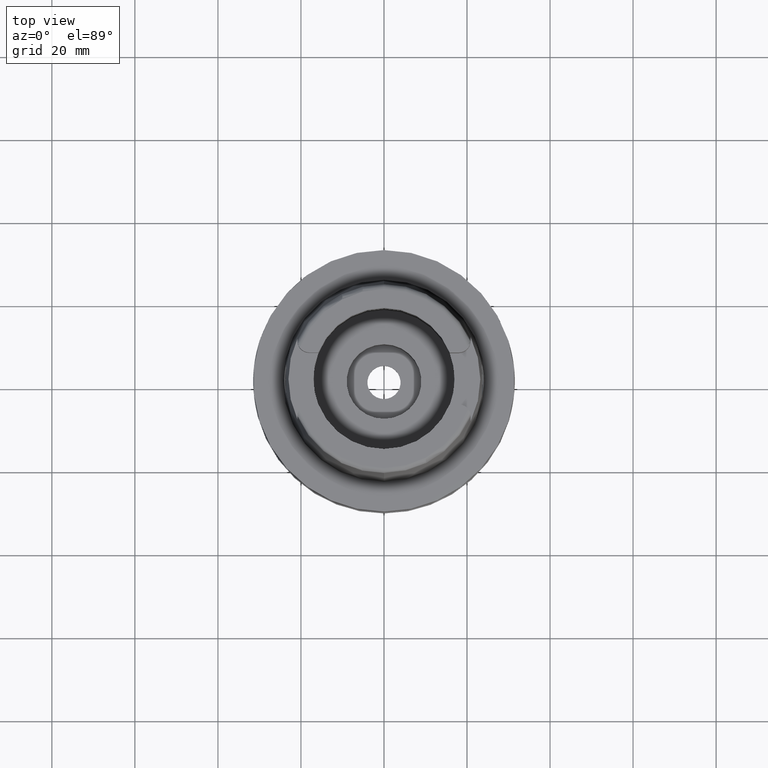
[diagram: clean part render]
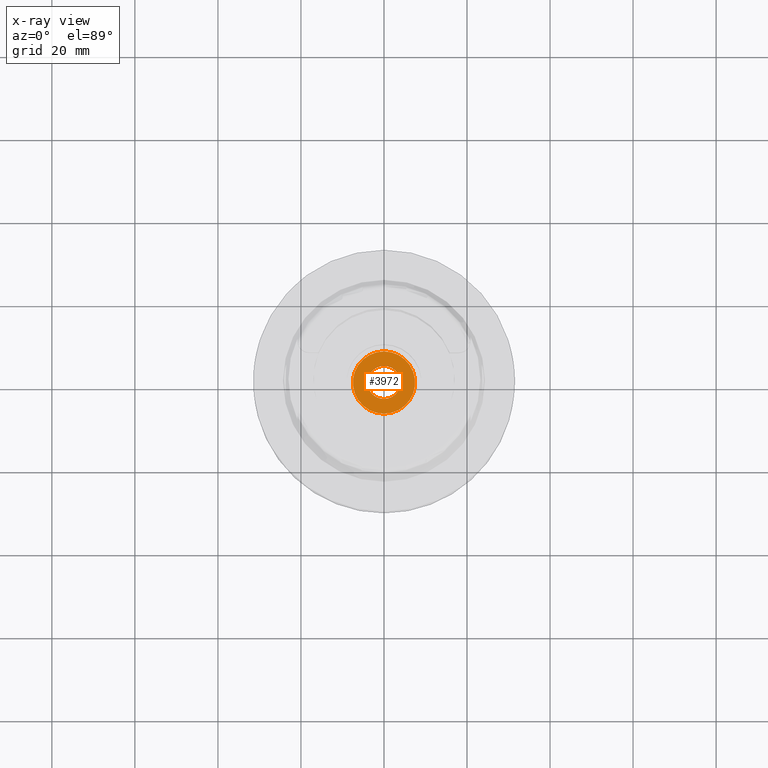
[diagram: x-ray — body ghosted, one internal face saturated and labeled with its STEP entity id]
A machine part, top view, then the same camera in x-ray: the body is ghosted and one INTERNAL B-rep face — a face not visible from any outside direction — is saturated and labeled: STEP entity #3972.
In plain terms, the highlighted planar face has unit normal (0, 0, 1).
Its self-contained STEP definition (entity closure, byte-faithful):
#1885=CARTESIAN_POINT('',(0.E0,0.E0,-2.5E1));
#1886=DIRECTION('',(0.E0,0.E0,1.E0));
#1887=DIRECTION('',(0.E0,-1.E0,0.E0));
#1888=AXIS2_PLACEMENT_3D('',#1885,#1886,#1887);
#1893=CARTESIAN_POINT('',(0.E0,0.E0,-2.5E1));
#1894=DIRECTION('',(0.E0,0.E0,1.E0));
#1895=DIRECTION('',(0.E0,1.E0,0.E0));
#1896=AXIS2_PLACEMENT_3D('',#1893,#1894,#1895);
#1901=CARTESIAN_POINT('',(0.E0,0.E0,-2.5E1));
#1902=DIRECTION('',(0.E0,0.E0,-1.E0));
#1903=DIRECTION('',(0.E0,-1.E0,0.E0));
#1904=AXIS2_PLACEMENT_3D('',#1901,#1902,#1903);
#1909=CARTESIAN_POINT('',(0.E0,0.E0,-2.5E1));
#1910=DIRECTION('',(0.E0,0.E0,-1.E0));
#1911=DIRECTION('',(0.E0,1.E0,0.E0));
#1912=AXIS2_PLACEMENT_3D('',#1909,#1910,#1911);
#2436=CARTESIAN_POINT('',(0.E0,4.E0,-2.5E1));
#2437=VERTEX_POINT('',#2436);
#2438=CARTESIAN_POINT('',(0.E0,-4.E0,-2.5E1));
#2439=VERTEX_POINT('',#2438);
#2440=CARTESIAN_POINT('',(0.E0,-7.5E0,-2.5E1));
#2441=CARTESIAN_POINT('',(0.E0,7.5E0,-2.5E1));
#2442=VERTEX_POINT('',#2440);
#2443=VERTEX_POINT('',#2441);
#3957=CARTESIAN_POINT('',(0.E0,0.E0,-2.5E1));
#3958=DIRECTION('',(0.E0,0.E0,1.E0));
#3959=DIRECTION('',(0.E0,1.E0,0.E0));
#3960=AXIS2_PLACEMENT_3D('',#3957,#3958,#3959);
#3961=PLANE('',#3960);
#3962=ORIENTED_EDGE('',*,*,#3950,.T.);
#3963=ORIENTED_EDGE('',*,*,#3939,.T.);
#3964=EDGE_LOOP('',(#3962,#3963));
#3965=FACE_OUTER_BOUND('',#3964,.F.);
#3967=ORIENTED_EDGE('',*,*,#3966,.T.);
#3969=ORIENTED_EDGE('',*,*,#3968,.T.);
#3970=EDGE_LOOP('',(#3967,#3969));
#3971=FACE_BOUND('',#3970,.F.);
#1889=CIRCLE('',#1888,7.5E0);
#1897=CIRCLE('',#1896,7.5E0);
#1905=CIRCLE('',#1904,4.E0);
#1913=CIRCLE('',#1912,4.E0);
#3939=EDGE_CURVE('',#2443,#2442,#1897,.T.);
#3950=EDGE_CURVE('',#2442,#2443,#1889,.T.);
#3966=EDGE_CURVE('',#2439,#2437,#1905,.T.);
#3968=EDGE_CURVE('',#2437,#2439,#1913,.T.);
#3972=ADVANCED_FACE('',(#3965,#3971),#3961,.F.);